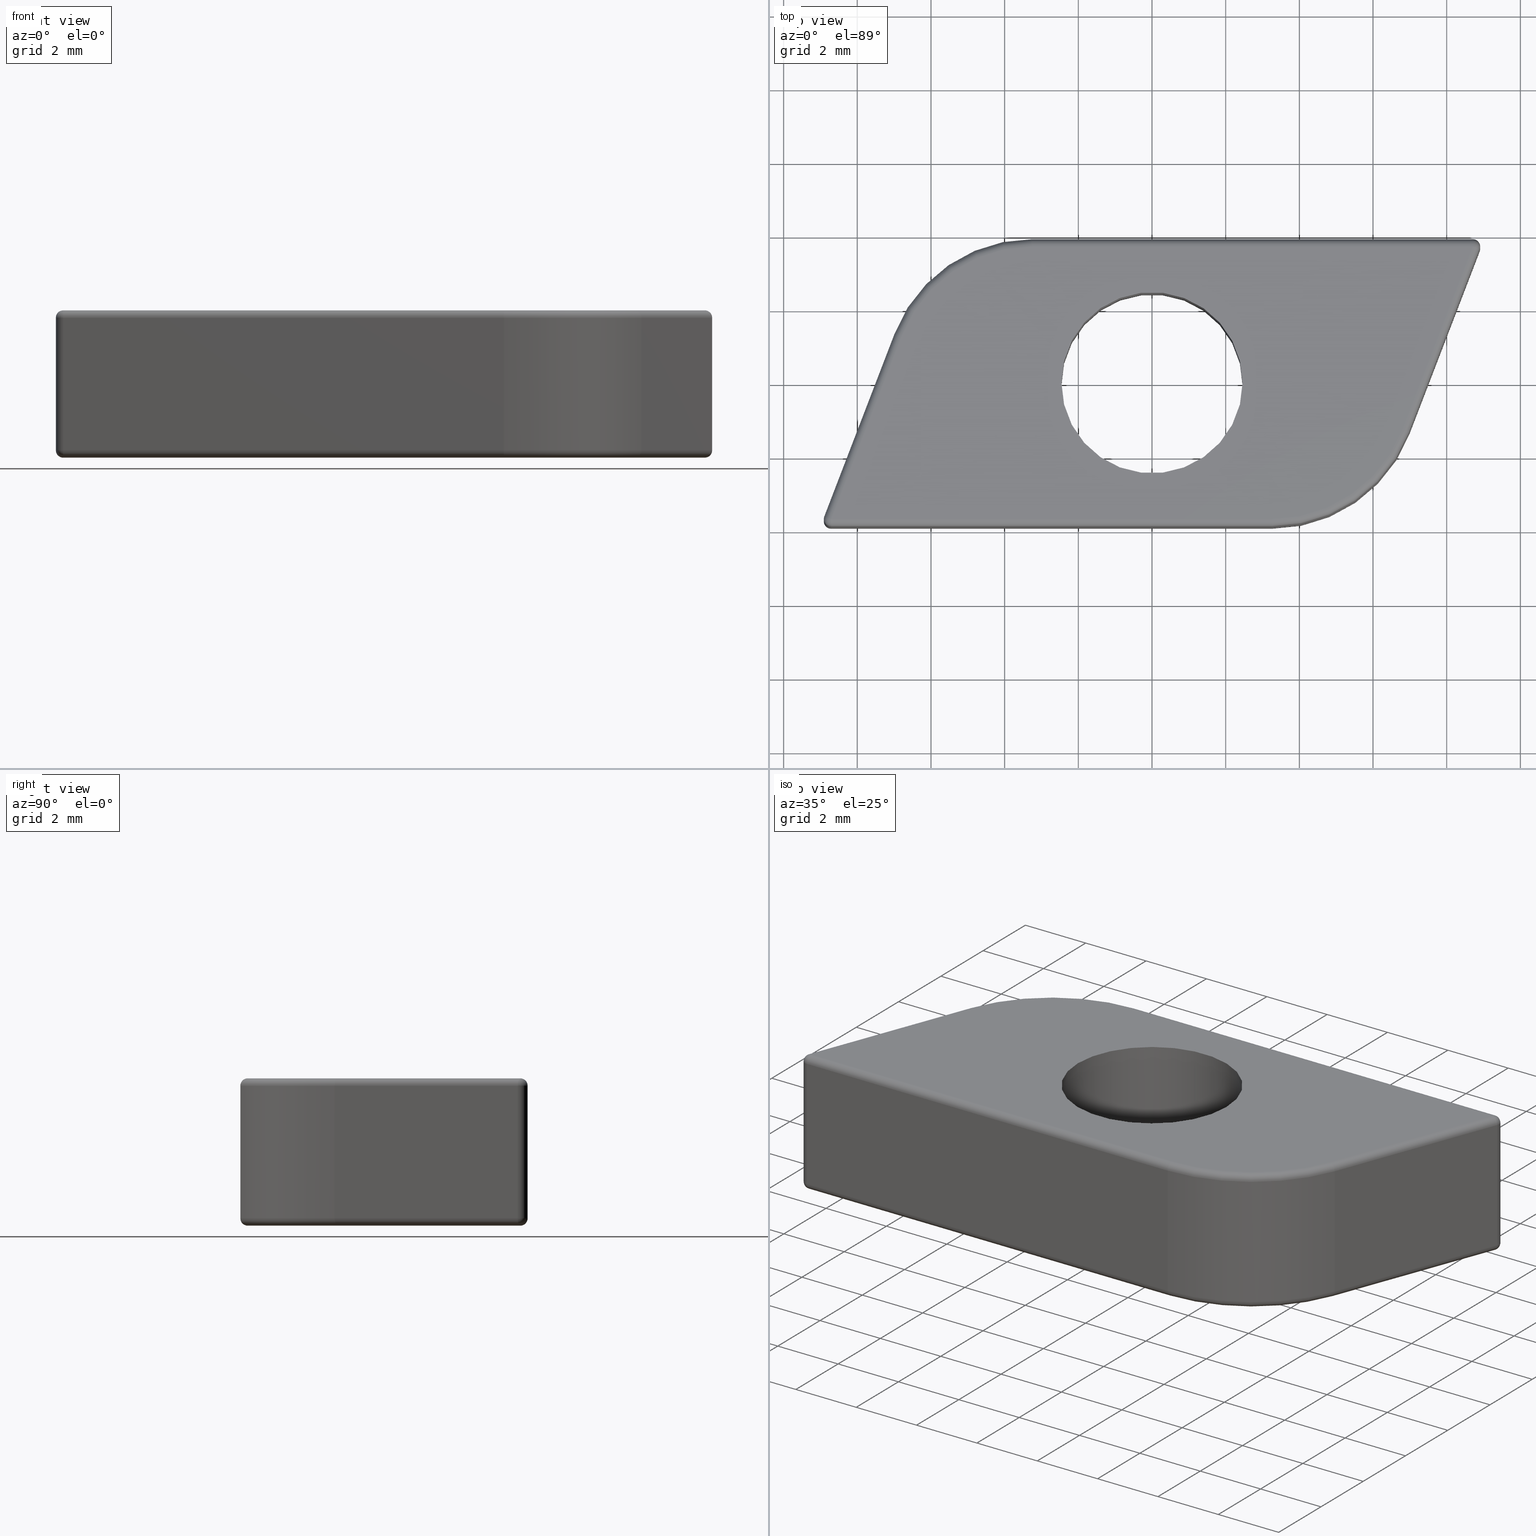
[diagram: canonical four-view strip — front | top / right | iso, engineering-drawing reading convention]
A machine part, canonical four-view strip (front | top / right | iso — engineering-drawing reading convention). The complete STEP part file that produces these views, byte-faithful:
ISO-10303-21;
HEADER;
/* Generated by software containing ST-Developer
 * from STEP Tools, Inc. (www.steptools.com) 
 */

FILE_DESCRIPTION(
/* description */ ('CURSORE SAGOMATO A MARTELLO M6'),
/* implementation_level */ '2;1');

FILE_NAME(
/* name */ 'C:\\Users\\Tecnico5\\Downloads\\CDDCU0000025.stp',
/* time_stamp */ '2025-02-13T09:21:02+01:00',
/* author */ ('tecnico5'),
/* organization */ (''),
/* preprocessor_version */ 'ST-DEVELOPER v20',
/* originating_system */ 'Autodesk Inventor 2022',
/* authorisation */ '');

FILE_SCHEMA (('AUTOMOTIVE_DESIGN { 1 0 10303 214 3 1 1 }'));
ENDSEC;

DATA;
#10=MECHANICAL_DESIGN_GEOMETRIC_PRESENTATION_REPRESENTATION('',(#13),#739);
#11=SHAPE_REPRESENTATION_RELATIONSHIP('SRR','None',#746,#12);
#12=ADVANCED_BREP_SHAPE_REPRESENTATION('',(#14),#738);
#13=STYLED_ITEM('',(#755),#14);
#14=MANIFOLD_SOLID_BREP('Solido1',#402);
#15=FACE_BOUND('',#139,.T.);
#16=FACE_BOUND('',#141,.T.);
#17=PLANE('',#473);
#18=PLANE('',#474);
#19=PLANE('',#476);
#20=PLANE('',#478);
#21=PLANE('',#479);
#22=PLANE('',#480);
#23=LINE('',#671,#48);
#24=LINE('',#672,#49);
#25=LINE('',#692,#50);
#26=LINE('',#693,#51);
#27=LINE('',#695,#52);
#28=LINE('',#696,#53);
#29=LINE('',#698,#54);
#30=LINE('',#699,#55);
#31=LINE('',#701,#56);
#32=LINE('',#702,#57);
#33=LINE('',#704,#58);
#34=LINE('',#705,#59);
#35=LINE('',#707,#60);
#36=LINE('',#708,#61);
#37=LINE('',#710,#62);
#38=LINE('',#711,#63);
#39=LINE('',#713,#64);
#40=LINE('',#714,#65);
#41=LINE('',#716,#66);
#42=LINE('',#717,#67);
#43=LINE('',#719,#68);
#44=LINE('',#720,#69);
#45=LINE('',#722,#70);
#46=LINE('',#723,#71);
#47=LINE('',#735,#72);
#48=VECTOR('',#538,10.);
#49=VECTOR('',#539,10.);
#50=VECTOR('',#562,10.);
#51=VECTOR('',#563,10.);
#52=VECTOR('',#566,10.);
#53=VECTOR('',#567,10.);
#54=VECTOR('',#570,10.);
#55=VECTOR('',#571,10.);
#56=VECTOR('',#574,10.);
#57=VECTOR('',#575,10.);
#58=VECTOR('',#578,10.);
#59=VECTOR('',#579,10.);
#60=VECTOR('',#582,10.);
#61=VECTOR('',#583,10.);
#62=VECTOR('',#586,10.);
#63=VECTOR('',#587,10.);
#64=VECTOR('',#590,10.);
#65=VECTOR('',#591,10.);
#66=VECTOR('',#594,10.);
#67=VECTOR('',#595,10.);
#68=VECTOR('',#598,10.);
#69=VECTOR('',#599,10.);
#70=VECTOR('',#602,10.);
#71=VECTOR('',#603,10.);
#72=VECTOR('',#622,2.4585);
#73=CYLINDRICAL_SURFACE('',#451,0.2);
#74=CYLINDRICAL_SURFACE('',#462,0.2);
#75=CYLINDRICAL_SURFACE('',#463,0.2);
#76=CYLINDRICAL_SURFACE('',#464,4.);
#77=CYLINDRICAL_SURFACE('',#465,0.2);
#78=CYLINDRICAL_SURFACE('',#466,0.2);
#79=CYLINDRICAL_SURFACE('',#467,0.2);
#80=CYLINDRICAL_SURFACE('',#468,0.2);
#81=CYLINDRICAL_SURFACE('',#469,0.2);
#82=CYLINDRICAL_SURFACE('',#470,0.2);
#83=CYLINDRICAL_SURFACE('',#471,0.2);
#84=CYLINDRICAL_SURFACE('',#472,4.);
#85=CYLINDRICAL_SURFACE('',#481,2.4585);
#86=SPHERICAL_SURFACE('',#435,0.2);
#87=SPHERICAL_SURFACE('',#439,0.2);
#88=SPHERICAL_SURFACE('',#443,0.2);
#89=SPHERICAL_SURFACE('',#447,0.2);
#90=FACE_OUTER_BOUND('',#117,.T.);
#91=FACE_OUTER_BOUND('',#118,.T.);
#92=FACE_OUTER_BOUND('',#119,.T.);
#93=FACE_OUTER_BOUND('',#120,.T.);
#94=FACE_OUTER_BOUND('',#121,.T.);
#95=FACE_OUTER_BOUND('',#122,.T.);
#96=FACE_OUTER_BOUND('',#123,.T.);
#97=FACE_OUTER_BOUND('',#124,.T.);
#98=FACE_OUTER_BOUND('',#125,.T.);
#99=FACE_OUTER_BOUND('',#126,.T.);
#100=FACE_OUTER_BOUND('',#127,.T.);
#101=FACE_OUTER_BOUND('',#128,.T.);
#102=FACE_OUTER_BOUND('',#129,.T.);
#103=FACE_OUTER_BOUND('',#130,.T.);
#104=FACE_OUTER_BOUND('',#131,.T.);
#105=FACE_OUTER_BOUND('',#132,.T.);
#106=FACE_OUTER_BOUND('',#133,.T.);
#107=FACE_OUTER_BOUND('',#134,.T.);
#108=FACE_OUTER_BOUND('',#135,.T.);
#109=FACE_OUTER_BOUND('',#136,.T.);
#110=FACE_OUTER_BOUND('',#137,.T.);
#111=FACE_OUTER_BOUND('',#138,.T.);
#112=FACE_OUTER_BOUND('',#140,.T.);
#113=FACE_OUTER_BOUND('',#142,.T.);
#114=FACE_OUTER_BOUND('',#143,.T.);
#115=FACE_OUTER_BOUND('',#144,.T.);
#116=FACE_OUTER_BOUND('',#145,.T.);
#117=EDGE_LOOP('',(#261,#262,#263,#264));
#118=EDGE_LOOP('',(#265,#266,#267,#268));
#119=EDGE_LOOP('',(#269,#270,#271));
#120=EDGE_LOOP('',(#272,#273,#274));
#121=EDGE_LOOP('',(#275,#276,#277));
#122=EDGE_LOOP('',(#278,#279,#280));
#123=EDGE_LOOP('',(#281,#282,#283,#284));
#124=EDGE_LOOP('',(#285,#286,#287,#288));
#125=EDGE_LOOP('',(#289,#290,#291,#292));
#126=EDGE_LOOP('',(#293,#294,#295,#296));
#127=EDGE_LOOP('',(#297,#298,#299,#300));
#128=EDGE_LOOP('',(#301,#302,#303,#304));
#129=EDGE_LOOP('',(#305,#306,#307,#308));
#130=EDGE_LOOP('',(#309,#310,#311,#312));
#131=EDGE_LOOP('',(#313,#314,#315,#316));
#132=EDGE_LOOP('',(#317,#318,#319,#320));
#133=EDGE_LOOP('',(#321,#322,#323,#324));
#134=EDGE_LOOP('',(#325,#326,#327,#328));
#135=EDGE_LOOP('',(#329,#330,#331,#332));
#136=EDGE_LOOP('',(#333,#334,#335,#336));
#137=EDGE_LOOP('',(#337,#338,#339,#340));
#138=EDGE_LOOP('',(#341,#342,#343,#344,#345,#346));
#139=EDGE_LOOP('',(#347));
#140=EDGE_LOOP('',(#348,#349,#350,#351,#352,#353));
#141=EDGE_LOOP('',(#354));
#142=EDGE_LOOP('',(#355,#356,#357,#358));
#143=EDGE_LOOP('',(#359,#360,#361,#362));
#144=EDGE_LOOP('',(#363,#364,#365,#366));
#145=EDGE_LOOP('',(#367,#368,#369,#370));
#146=CIRCLE('',#426,0.2);
#147=CIRCLE('',#427,4.);
#148=CIRCLE('',#428,0.2);
#149=CIRCLE('',#429,3.8);
#150=CIRCLE('',#431,3.8);
#151=CIRCLE('',#432,0.2);
#152=CIRCLE('',#433,4.);
#153=CIRCLE('',#434,0.2);
#154=CIRCLE('',#436,0.2);
#155=CIRCLE('',#437,0.2);
#156=CIRCLE('',#438,0.2);
#157=CIRCLE('',#440,0.2);
#158=CIRCLE('',#441,0.2);
#159=CIRCLE('',#442,0.2);
#160=CIRCLE('',#444,0.2);
#161=CIRCLE('',#445,0.2);
#162=CIRCLE('',#446,0.2);
#163=CIRCLE('',#448,0.2);
#164=CIRCLE('',#449,0.2);
#165=CIRCLE('',#450,0.2);
#166=CIRCLE('',#453,0.2);
#167=CIRCLE('',#454,4.);
#168=CIRCLE('',#455,0.2);
#169=CIRCLE('',#456,3.8);
#170=CIRCLE('',#458,4.);
#171=CIRCLE('',#459,0.2);
#172=CIRCLE('',#460,3.8);
#173=CIRCLE('',#461,0.199999999999999);
#174=CIRCLE('',#475,2.4585);
#175=CIRCLE('',#477,2.4585);
#176=VERTEX_POINT('',#625);
#177=VERTEX_POINT('',#626);
#178=VERTEX_POINT('',#628);
#179=VERTEX_POINT('',#630);
#180=VERTEX_POINT('',#634);
#181=VERTEX_POINT('',#635);
#182=VERTEX_POINT('',#637);
#183=VERTEX_POINT('',#639);
#184=VERTEX_POINT('',#643);
#185=VERTEX_POINT('',#644);
#186=VERTEX_POINT('',#646);
#187=VERTEX_POINT('',#650);
#188=VERTEX_POINT('',#651);
#189=VERTEX_POINT('',#653);
#190=VERTEX_POINT('',#657);
#191=VERTEX_POINT('',#658);
#192=VERTEX_POINT('',#660);
#193=VERTEX_POINT('',#664);
#194=VERTEX_POINT('',#665);
#195=VERTEX_POINT('',#667);
#196=VERTEX_POINT('',#674);
#197=VERTEX_POINT('',#675);
#198=VERTEX_POINT('',#677);
#199=VERTEX_POINT('',#679);
#200=VERTEX_POINT('',#683);
#201=VERTEX_POINT('',#684);
#202=VERTEX_POINT('',#686);
#203=VERTEX_POINT('',#688);
#204=VERTEX_POINT('',#726);
#205=VERTEX_POINT('',#729);
#206=EDGE_CURVE('',#176,#177,#146,.T.);
#207=EDGE_CURVE('',#178,#176,#147,.F.);
#208=EDGE_CURVE('',#179,#178,#148,.T.);
#209=EDGE_CURVE('',#179,#177,#149,.T.);
#210=EDGE_CURVE('',#180,#181,#150,.T.);
#211=EDGE_CURVE('',#182,#181,#151,.T.);
#212=EDGE_CURVE('',#183,#182,#152,.F.);
#213=EDGE_CURVE('',#180,#183,#153,.T.);
#214=EDGE_CURVE('',#184,#185,#154,.F.);
#215=EDGE_CURVE('',#186,#184,#155,.F.);
#216=EDGE_CURVE('',#185,#186,#156,.F.);
#217=EDGE_CURVE('',#187,#188,#157,.F.);
#218=EDGE_CURVE('',#189,#187,#158,.F.);
#219=EDGE_CURVE('',#188,#189,#159,.F.);
#220=EDGE_CURVE('',#190,#191,#160,.F.);
#221=EDGE_CURVE('',#192,#190,#161,.F.);
#222=EDGE_CURVE('',#191,#192,#162,.F.);
#223=EDGE_CURVE('',#193,#194,#163,.F.);
#224=EDGE_CURVE('',#195,#193,#164,.F.);
#225=EDGE_CURVE('',#194,#195,#165,.F.);
#226=EDGE_CURVE('',#193,#182,#23,.T.);
#227=EDGE_CURVE('',#181,#195,#24,.T.);
#228=EDGE_CURVE('',#196,#197,#166,.T.);
#229=EDGE_CURVE('',#198,#196,#167,.F.);
#230=EDGE_CURVE('',#199,#198,#168,.T.);
#231=EDGE_CURVE('',#199,#197,#169,.T.);
#232=EDGE_CURVE('',#200,#201,#170,.F.);
#233=EDGE_CURVE('',#202,#200,#171,.T.);
#234=EDGE_CURVE('',#202,#203,#172,.T.);
#235=EDGE_CURVE('',#201,#203,#173,.T.);
#236=EDGE_CURVE('',#200,#194,#25,.T.);
#237=EDGE_CURVE('',#195,#202,#26,.T.);
#238=EDGE_CURVE('',#190,#201,#27,.T.);
#239=EDGE_CURVE('',#203,#192,#28,.T.);
#240=EDGE_CURVE('',#196,#200,#29,.T.);
#241=EDGE_CURVE('',#201,#198,#30,.T.);
#242=EDGE_CURVE('',#188,#199,#31,.T.);
#243=EDGE_CURVE('',#198,#187,#32,.T.);
#244=EDGE_CURVE('',#197,#185,#33,.T.);
#245=EDGE_CURVE('',#186,#196,#34,.T.);
#246=EDGE_CURVE('',#184,#193,#35,.T.);
#247=EDGE_CURVE('',#194,#186,#36,.T.);
#248=EDGE_CURVE('',#183,#191,#37,.T.);
#249=EDGE_CURVE('',#192,#180,#38,.T.);
#250=EDGE_CURVE('',#187,#190,#39,.T.);
#251=EDGE_CURVE('',#191,#189,#40,.T.);
#252=EDGE_CURVE('',#177,#188,#41,.T.);
#253=EDGE_CURVE('',#189,#176,#42,.T.);
#254=EDGE_CURVE('',#185,#179,#43,.T.);
#255=EDGE_CURVE('',#178,#184,#44,.T.);
#256=EDGE_CURVE('',#176,#183,#45,.T.);
#257=EDGE_CURVE('',#182,#178,#46,.T.);
#258=EDGE_CURVE('',#204,#204,#174,.T.);
#259=EDGE_CURVE('',#205,#205,#175,.T.);
#260=EDGE_CURVE('',#205,#204,#47,.T.);
#261=ORIENTED_EDGE('',*,*,#206,.F.);
#262=ORIENTED_EDGE('',*,*,#207,.F.);
#263=ORIENTED_EDGE('',*,*,#208,.F.);
#264=ORIENTED_EDGE('',*,*,#209,.T.);
#265=ORIENTED_EDGE('',*,*,#210,.T.);
#266=ORIENTED_EDGE('',*,*,#211,.F.);
#267=ORIENTED_EDGE('',*,*,#212,.F.);
#268=ORIENTED_EDGE('',*,*,#213,.F.);
#269=ORIENTED_EDGE('',*,*,#214,.F.);
#270=ORIENTED_EDGE('',*,*,#215,.F.);
#271=ORIENTED_EDGE('',*,*,#216,.F.);
#272=ORIENTED_EDGE('',*,*,#217,.F.);
#273=ORIENTED_EDGE('',*,*,#218,.F.);
#274=ORIENTED_EDGE('',*,*,#219,.F.);
#275=ORIENTED_EDGE('',*,*,#220,.F.);
#276=ORIENTED_EDGE('',*,*,#221,.F.);
#277=ORIENTED_EDGE('',*,*,#222,.F.);
#278=ORIENTED_EDGE('',*,*,#223,.F.);
#279=ORIENTED_EDGE('',*,*,#224,.F.);
#280=ORIENTED_EDGE('',*,*,#225,.F.);
#281=ORIENTED_EDGE('',*,*,#224,.T.);
#282=ORIENTED_EDGE('',*,*,#226,.T.);
#283=ORIENTED_EDGE('',*,*,#211,.T.);
#284=ORIENTED_EDGE('',*,*,#227,.T.);
#285=ORIENTED_EDGE('',*,*,#228,.F.);
#286=ORIENTED_EDGE('',*,*,#229,.F.);
#287=ORIENTED_EDGE('',*,*,#230,.F.);
#288=ORIENTED_EDGE('',*,*,#231,.T.);
#289=ORIENTED_EDGE('',*,*,#232,.F.);
#290=ORIENTED_EDGE('',*,*,#233,.F.);
#291=ORIENTED_EDGE('',*,*,#234,.T.);
#292=ORIENTED_EDGE('',*,*,#235,.F.);
#293=ORIENTED_EDGE('',*,*,#233,.T.);
#294=ORIENTED_EDGE('',*,*,#236,.T.);
#295=ORIENTED_EDGE('',*,*,#225,.T.);
#296=ORIENTED_EDGE('',*,*,#237,.T.);
#297=ORIENTED_EDGE('',*,*,#221,.T.);
#298=ORIENTED_EDGE('',*,*,#238,.T.);
#299=ORIENTED_EDGE('',*,*,#235,.T.);
#300=ORIENTED_EDGE('',*,*,#239,.T.);
#301=ORIENTED_EDGE('',*,*,#229,.T.);
#302=ORIENTED_EDGE('',*,*,#240,.T.);
#303=ORIENTED_EDGE('',*,*,#232,.T.);
#304=ORIENTED_EDGE('',*,*,#241,.T.);
#305=ORIENTED_EDGE('',*,*,#217,.T.);
#306=ORIENTED_EDGE('',*,*,#242,.T.);
#307=ORIENTED_EDGE('',*,*,#230,.T.);
#308=ORIENTED_EDGE('',*,*,#243,.T.);
#309=ORIENTED_EDGE('',*,*,#228,.T.);
#310=ORIENTED_EDGE('',*,*,#244,.T.);
#311=ORIENTED_EDGE('',*,*,#216,.T.);
#312=ORIENTED_EDGE('',*,*,#245,.T.);
#313=ORIENTED_EDGE('',*,*,#215,.T.);
#314=ORIENTED_EDGE('',*,*,#246,.T.);
#315=ORIENTED_EDGE('',*,*,#223,.T.);
#316=ORIENTED_EDGE('',*,*,#247,.T.);
#317=ORIENTED_EDGE('',*,*,#213,.T.);
#318=ORIENTED_EDGE('',*,*,#248,.T.);
#319=ORIENTED_EDGE('',*,*,#222,.T.);
#320=ORIENTED_EDGE('',*,*,#249,.T.);
#321=ORIENTED_EDGE('',*,*,#218,.T.);
#322=ORIENTED_EDGE('',*,*,#250,.T.);
#323=ORIENTED_EDGE('',*,*,#220,.T.);
#324=ORIENTED_EDGE('',*,*,#251,.T.);
#325=ORIENTED_EDGE('',*,*,#206,.T.);
#326=ORIENTED_EDGE('',*,*,#252,.T.);
#327=ORIENTED_EDGE('',*,*,#219,.T.);
#328=ORIENTED_EDGE('',*,*,#253,.T.);
#329=ORIENTED_EDGE('',*,*,#214,.T.);
#330=ORIENTED_EDGE('',*,*,#254,.T.);
#331=ORIENTED_EDGE('',*,*,#208,.T.);
#332=ORIENTED_EDGE('',*,*,#255,.T.);
#333=ORIENTED_EDGE('',*,*,#207,.T.);
#334=ORIENTED_EDGE('',*,*,#256,.T.);
#335=ORIENTED_EDGE('',*,*,#212,.T.);
#336=ORIENTED_EDGE('',*,*,#257,.T.);
#337=ORIENTED_EDGE('',*,*,#226,.F.);
#338=ORIENTED_EDGE('',*,*,#246,.F.);
#339=ORIENTED_EDGE('',*,*,#255,.F.);
#340=ORIENTED_EDGE('',*,*,#257,.F.);
#341=ORIENTED_EDGE('',*,*,#231,.F.);
#342=ORIENTED_EDGE('',*,*,#242,.F.);
#343=ORIENTED_EDGE('',*,*,#252,.F.);
#344=ORIENTED_EDGE('',*,*,#209,.F.);
#345=ORIENTED_EDGE('',*,*,#254,.F.);
#346=ORIENTED_EDGE('',*,*,#244,.F.);
#347=ORIENTED_EDGE('',*,*,#258,.T.);
#348=ORIENTED_EDGE('',*,*,#234,.F.);
#349=ORIENTED_EDGE('',*,*,#237,.F.);
#350=ORIENTED_EDGE('',*,*,#227,.F.);
#351=ORIENTED_EDGE('',*,*,#210,.F.);
#352=ORIENTED_EDGE('',*,*,#249,.F.);
#353=ORIENTED_EDGE('',*,*,#239,.F.);
#354=ORIENTED_EDGE('',*,*,#259,.T.);
#355=ORIENTED_EDGE('',*,*,#236,.F.);
#356=ORIENTED_EDGE('',*,*,#240,.F.);
#357=ORIENTED_EDGE('',*,*,#245,.F.);
#358=ORIENTED_EDGE('',*,*,#247,.F.);
#359=ORIENTED_EDGE('',*,*,#238,.F.);
#360=ORIENTED_EDGE('',*,*,#250,.F.);
#361=ORIENTED_EDGE('',*,*,#243,.F.);
#362=ORIENTED_EDGE('',*,*,#241,.F.);
#363=ORIENTED_EDGE('',*,*,#248,.F.);
#364=ORIENTED_EDGE('',*,*,#256,.F.);
#365=ORIENTED_EDGE('',*,*,#253,.F.);
#366=ORIENTED_EDGE('',*,*,#251,.F.);
#367=ORIENTED_EDGE('',*,*,#259,.F.);
#368=ORIENTED_EDGE('',*,*,#260,.T.);
#369=ORIENTED_EDGE('',*,*,#258,.F.);
#370=ORIENTED_EDGE('',*,*,#260,.F.);
#371=TOROIDAL_SURFACE('',#425,3.80000000000001,0.2);
#372=TOROIDAL_SURFACE('',#430,3.8,0.2);
#373=TOROIDAL_SURFACE('',#452,3.80000000000001,0.2);
#374=TOROIDAL_SURFACE('',#457,3.8,0.199999999999999);
#375=ADVANCED_FACE('',(#90),#371,.T.);
#376=ADVANCED_FACE('',(#91),#372,.T.);
#377=ADVANCED_FACE('',(#92),#86,.T.);
#378=ADVANCED_FACE('',(#93),#87,.T.);
#379=ADVANCED_FACE('',(#94),#88,.T.);
#380=ADVANCED_FACE('',(#95),#89,.T.);
#381=ADVANCED_FACE('',(#96),#73,.T.);
#382=ADVANCED_FACE('',(#97),#373,.T.);
#383=ADVANCED_FACE('',(#98),#374,.T.);
#384=ADVANCED_FACE('',(#99),#74,.T.);
#385=ADVANCED_FACE('',(#100),#75,.T.);
#386=ADVANCED_FACE('',(#101),#76,.T.);
#387=ADVANCED_FACE('',(#102),#77,.T.);
#388=ADVANCED_FACE('',(#103),#78,.T.);
#389=ADVANCED_FACE('',(#104),#79,.T.);
#390=ADVANCED_FACE('',(#105),#80,.T.);
#391=ADVANCED_FACE('',(#106),#81,.T.);
#392=ADVANCED_FACE('',(#107),#82,.T.);
#393=ADVANCED_FACE('',(#108),#83,.T.);
#394=ADVANCED_FACE('',(#109),#84,.T.);
#395=ADVANCED_FACE('',(#110),#17,.T.);
#396=ADVANCED_FACE('',(#111,#15),#18,.T.);
#397=ADVANCED_FACE('',(#112,#16),#19,.F.);
#398=ADVANCED_FACE('',(#113),#20,.T.);
#399=ADVANCED_FACE('',(#114),#21,.T.);
#400=ADVANCED_FACE('',(#115),#22,.T.);
#401=ADVANCED_FACE('',(#116),#85,.F.);
#402=CLOSED_SHELL('',(#375,#376,#377,#378,#379,#380,#381,#382,#383,#384,
#385,#386,#387,#388,#389,#390,#391,#392,#393,#394,#395,#396,#397,#398,#399,
#400,#401));
#403=DERIVED_UNIT_ELEMENT(#406,1.);
#404=DERIVED_UNIT_ELEMENT(#741,-3.);
#405=DIMENSIONAL_EXPONENTS(1.,0.,0.,0.,0.,0.,0.);
#406=(
CONVERSION_BASED_UNIT('gram',#408)
MASS_UNIT()
NAMED_UNIT(#405)
);
#407=(
MASS_UNIT()
NAMED_UNIT(*)
SI_UNIT(.KILO.,.GRAM.)
);
#408=MASS_MEASURE_WITH_UNIT(MASS_MEASURE(0.001),#407);
#409=DERIVED_UNIT((#403,#404));
#410=MEASURE_REPRESENTATION_ITEM('density measure',
POSITIVE_RATIO_MEASURE(7.85),#409);
#411=PROPERTY_DEFINITION_REPRESENTATION(#416,#413);
#412=PROPERTY_DEFINITION_REPRESENTATION(#417,#414);
#413=REPRESENTATION('material name',(#415),#738);
#414=REPRESENTATION('density',(#410),#738);
#415=DESCRIPTIVE_REPRESENTATION_ITEM('Acciaio S235JR','Acciaio S235JR');
#416=PROPERTY_DEFINITION('material property','material name',#748);
#417=PROPERTY_DEFINITION('material property','density of part',#748);
#418=DATE_TIME_ROLE('creation_date');
#419=APPLIED_DATE_AND_TIME_ASSIGNMENT(#420,#418,(#748));
#420=DATE_AND_TIME(#421,#422);
#421=CALENDAR_DATE(2019,4,7);
#422=LOCAL_TIME(0,0,0.,#423);
#423=COORDINATED_UNIVERSAL_TIME_OFFSET(0,0,.BEHIND.);
#424=AXIS2_PLACEMENT_3D('placement',#623,#482,#483);
#425=AXIS2_PLACEMENT_3D('',#624,#484,#485);
#426=AXIS2_PLACEMENT_3D('',#627,#486,#487);
#427=AXIS2_PLACEMENT_3D('',#629,#488,#489);
#428=AXIS2_PLACEMENT_3D('',#631,#490,#491);
#429=AXIS2_PLACEMENT_3D('',#632,#492,#493);
#430=AXIS2_PLACEMENT_3D('',#633,#494,#495);
#431=AXIS2_PLACEMENT_3D('',#636,#496,#497);
#432=AXIS2_PLACEMENT_3D('',#638,#498,#499);
#433=AXIS2_PLACEMENT_3D('',#640,#500,#501);
#434=AXIS2_PLACEMENT_3D('',#641,#502,#503);
#435=AXIS2_PLACEMENT_3D('',#642,#504,#505);
#436=AXIS2_PLACEMENT_3D('',#645,#506,#507);
#437=AXIS2_PLACEMENT_3D('',#647,#508,#509);
#438=AXIS2_PLACEMENT_3D('',#648,#510,#511);
#439=AXIS2_PLACEMENT_3D('',#649,#512,#513);
#440=AXIS2_PLACEMENT_3D('',#652,#514,#515);
#441=AXIS2_PLACEMENT_3D('',#654,#516,#517);
#442=AXIS2_PLACEMENT_3D('',#655,#518,#519);
#443=AXIS2_PLACEMENT_3D('',#656,#520,#521);
#444=AXIS2_PLACEMENT_3D('',#659,#522,#523);
#445=AXIS2_PLACEMENT_3D('',#661,#524,#525);
#446=AXIS2_PLACEMENT_3D('',#662,#526,#527);
#447=AXIS2_PLACEMENT_3D('',#663,#528,#529);
#448=AXIS2_PLACEMENT_3D('',#666,#530,#531);
#449=AXIS2_PLACEMENT_3D('',#668,#532,#533);
#450=AXIS2_PLACEMENT_3D('',#669,#534,#535);
#451=AXIS2_PLACEMENT_3D('',#670,#536,#537);
#452=AXIS2_PLACEMENT_3D('',#673,#540,#541);
#453=AXIS2_PLACEMENT_3D('',#676,#542,#543);
#454=AXIS2_PLACEMENT_3D('',#678,#544,#545);
#455=AXIS2_PLACEMENT_3D('',#680,#546,#547);
#456=AXIS2_PLACEMENT_3D('',#681,#548,#549);
#457=AXIS2_PLACEMENT_3D('',#682,#550,#551);
#458=AXIS2_PLACEMENT_3D('',#685,#552,#553);
#459=AXIS2_PLACEMENT_3D('',#687,#554,#555);
#460=AXIS2_PLACEMENT_3D('',#689,#556,#557);
#461=AXIS2_PLACEMENT_3D('',#690,#558,#559);
#462=AXIS2_PLACEMENT_3D('',#691,#560,#561);
#463=AXIS2_PLACEMENT_3D('',#694,#564,#565);
#464=AXIS2_PLACEMENT_3D('',#697,#568,#569);
#465=AXIS2_PLACEMENT_3D('',#700,#572,#573);
#466=AXIS2_PLACEMENT_3D('',#703,#576,#577);
#467=AXIS2_PLACEMENT_3D('',#706,#580,#581);
#468=AXIS2_PLACEMENT_3D('',#709,#584,#585);
#469=AXIS2_PLACEMENT_3D('',#712,#588,#589);
#470=AXIS2_PLACEMENT_3D('',#715,#592,#593);
#471=AXIS2_PLACEMENT_3D('',#718,#596,#597);
#472=AXIS2_PLACEMENT_3D('',#721,#600,#601);
#473=AXIS2_PLACEMENT_3D('',#724,#604,#605);
#474=AXIS2_PLACEMENT_3D('',#725,#606,#607);
#475=AXIS2_PLACEMENT_3D('',#727,#608,#609);
#476=AXIS2_PLACEMENT_3D('',#728,#610,#611);
#477=AXIS2_PLACEMENT_3D('',#730,#612,#613);
#478=AXIS2_PLACEMENT_3D('',#731,#614,#615);
#479=AXIS2_PLACEMENT_3D('',#732,#616,#617);
#480=AXIS2_PLACEMENT_3D('',#733,#618,#619);
#481=AXIS2_PLACEMENT_3D('',#734,#620,#621);
#482=DIRECTION('axis',(0.,0.,1.));
#483=DIRECTION('refdir',(1.,0.,0.));
#484=DIRECTION('center_axis',(0.,0.,1.));
#485=DIRECTION('ref_axis',(1.,0.,0.));
#486=DIRECTION('center_axis',(1.,0.,0.));
#487=DIRECTION('ref_axis',(0.,1.,0.));
#488=DIRECTION('center_axis',(0.,0.,1.));
#489=DIRECTION('ref_axis',(-0.933340797033894,0.35899158289873,0.));
#490=DIRECTION('center_axis',(-0.358991582898732,-0.933340797033893,0.));
#491=DIRECTION('ref_axis',(0.,0.,1.));
#492=DIRECTION('center_axis',(0.,0.,-1.));
#493=DIRECTION('ref_axis',(-0.566130911142145,0.824315347090763,0.));
#494=DIRECTION('center_axis',(0.,2.77555756156289E-15,1.));
#495=DIRECTION('ref_axis',(1.,0.,0.));
#496=DIRECTION('center_axis',(0.,0.,1.));
#497=DIRECTION('ref_axis',(-0.566130911142145,0.824315347090763,0.));
#498=DIRECTION('center_axis',(-0.35899158289873,-0.933340797033894,2.59054110672256E-15));
#499=DIRECTION('ref_axis',(-0.933340797033894,0.35899158289873,0.));
#500=DIRECTION('center_axis',(0.,0.,-1.));
#501=DIRECTION('ref_axis',(-1.38777878078145E-16,1.,0.));
#502=DIRECTION('center_axis',(1.,0.,0.));
#503=DIRECTION('ref_axis',(0.,0.,-1.));
#504=DIRECTION('center_axis',(0.289529722585717,-0.90550735830652,-0.310207936378464));
#505=DIRECTION('ref_axis',(-0.617846836957846,-0.424330559885503,0.661973460199455));
#506=DIRECTION('center_axis',(-0.35899158289873,-0.933340797033894,7.17388581834911E-15));
#507=DIRECTION('ref_axis',(-0.933340797033894,0.35899158289873,0.));
#508=DIRECTION('center_axis',(0.,0.,1.));
#509=DIRECTION('ref_axis',(0.,-1.,0.));
#510=DIRECTION('center_axis',(-1.,0.,0.));
#511=DIRECTION('ref_axis',(0.,0.,1.));
#512=DIRECTION('center_axis',(0.289529722585717,-0.905507358306521,0.310207936378462));
#513=DIRECTION('ref_axis',(0.617846836957848,0.424330559885502,0.661973460199455));
#514=DIRECTION('center_axis',(0.35899158289873,0.933340797033894,0.));
#515=DIRECTION('ref_axis',(0.933340797033894,-0.35899158289873,0.));
#516=DIRECTION('center_axis',(0.,0.,1.));
#517=DIRECTION('ref_axis',(0.,1.,0.));
#518=DIRECTION('center_axis',(1.,5.55111512312579E-15,0.));
#519=DIRECTION('ref_axis',(0.,0.,1.));
#520=DIRECTION('center_axis',(0.289529722585717,-0.905507358306518,-0.310207936378469));
#521=DIRECTION('ref_axis',(0.617846836957839,0.424330559885511,-0.661973460199457));
#522=DIRECTION('center_axis',(0.,0.,-1.));
#523=DIRECTION('ref_axis',(0.933340797033894,-0.35899158289873,0.));
#524=DIRECTION('center_axis',(0.358991582898725,0.933340797033896,0.));
#525=DIRECTION('ref_axis',(0.,0.,-1.));
#526=DIRECTION('center_axis',(1.,0.,5.55111512312578E-15));
#527=DIRECTION('ref_axis',(0.,1.,0.));
#528=DIRECTION('center_axis',(0.289529722585718,-0.905507358306518,0.310207936378469));
#529=DIRECTION('ref_axis',(-0.617846836957846,-0.424330559885512,-0.66197346019945));
#530=DIRECTION('center_axis',(0.,0.,-1.));
#531=DIRECTION('ref_axis',(-0.933340797033894,0.35899158289873,0.));
#532=DIRECTION('center_axis',(-0.358991582898723,-0.933340797033897,0.));
#533=DIRECTION('ref_axis',(0.,0.,-1.));
#534=DIRECTION('center_axis',(-1.,0.,0.));
#535=DIRECTION('ref_axis',(0.,-1.,0.));
#536=DIRECTION('center_axis',(-0.35899158289873,-0.933340797033894,0.));
#537=DIRECTION('ref_axis',(-0.659971606740721,0.253845382656587,-0.707106781186549));
#538=DIRECTION('',(0.35899158289873,0.933340797033894,0.));
#539=DIRECTION('',(-0.35899158289873,-0.933340797033894,0.));
#540=DIRECTION('center_axis',(0.,0.,1.));
#541=DIRECTION('ref_axis',(1.,0.,0.));
#542=DIRECTION('center_axis',(-1.,0.,0.));
#543=DIRECTION('ref_axis',(0.,-1.,0.));
#544=DIRECTION('center_axis',(0.,0.,1.));
#545=DIRECTION('ref_axis',(0.933340797033894,-0.358991582898729,0.));
#546=DIRECTION('center_axis',(0.358991582898733,0.933340797033893,0.));
#547=DIRECTION('ref_axis',(0.,0.,1.));
#548=DIRECTION('center_axis',(0.,0.,-1.));
#549=DIRECTION('ref_axis',(0.566130911142145,-0.824315347090762,0.));
#550=DIRECTION('center_axis',(0.,1.38777878078145E-15,-1.));
#551=DIRECTION('ref_axis',(-1.,0.,0.));
#552=DIRECTION('center_axis',(0.,0.,-1.));
#553=DIRECTION('ref_axis',(2.77555756156289E-16,-1.,0.));
#554=DIRECTION('center_axis',(-1.,0.,0.));
#555=DIRECTION('ref_axis',(0.,0.,-1.));
#556=DIRECTION('center_axis',(0.,0.,1.));
#557=DIRECTION('ref_axis',(0.566130911142145,-0.824315347090763,0.));
#558=DIRECTION('center_axis',(0.358991582898732,0.933340797033893,1.29527055336128E-15));
#559=DIRECTION('ref_axis',(0.933340797033893,-0.358991582898731,0.));
#560=DIRECTION('center_axis',(1.,2.59054110672256E-16,0.));
#561=DIRECTION('ref_axis',(0.,-0.707106781186548,-0.707106781186547));
#562=DIRECTION('',(-1.,-2.59054110672256E-16,0.));
#563=DIRECTION('',(1.,2.59054110672256E-16,0.));
#564=DIRECTION('center_axis',(0.358991582898729,0.933340797033894,0.));
#565=DIRECTION('ref_axis',(0.659971606740726,-0.253845382656582,-0.707106781186546));
#566=DIRECTION('',(-0.358991582898729,-0.933340797033894,0.));
#567=DIRECTION('',(0.358991582898729,0.933340797033894,0.));
#568=DIRECTION('center_axis',(0.,0.,1.));
#569=DIRECTION('ref_axis',(0.566130911142145,-0.824315347090763,0.));
#570=DIRECTION('',(0.,0.,-1.));
#571=DIRECTION('',(0.,0.,1.));
#572=DIRECTION('center_axis',(0.358991582898729,0.933340797033894,0.));
#573=DIRECTION('ref_axis',(0.659971606740726,-0.253845382656582,0.707106781186546));
#574=DIRECTION('',(-0.358991582898729,-0.933340797033894,0.));
#575=DIRECTION('',(0.358991582898729,0.933340797033894,0.));
#576=DIRECTION('center_axis',(1.,2.59054110672256E-16,0.));
#577=DIRECTION('ref_axis',(0.,-0.707106781186548,0.707106781186548));
#578=DIRECTION('',(-1.,-2.59054110672256E-16,0.));
#579=DIRECTION('',(1.,2.59054110672256E-16,0.));
#580=DIRECTION('center_axis',(0.,0.,1.));
#581=DIRECTION('ref_axis',(-0.824315347090762,-0.566130911142146,0.));
#582=DIRECTION('',(0.,0.,-1.));
#583=DIRECTION('',(0.,0.,1.));
#584=DIRECTION('center_axis',(-1.,-7.40154601920732E-17,0.));
#585=DIRECTION('ref_axis',(0.,0.707106781186548,-0.707106781186547));
#586=DIRECTION('',(1.,7.40154601920732E-17,0.));
#587=DIRECTION('',(-1.,-7.40154601920732E-17,0.));
#588=DIRECTION('center_axis',(0.,0.,1.));
#589=DIRECTION('ref_axis',(0.824315347090765,0.566130911142142,0.));
#590=DIRECTION('',(0.,0.,-1.));
#591=DIRECTION('',(0.,0.,1.));
#592=DIRECTION('center_axis',(-1.,-7.40154601920732E-17,0.));
#593=DIRECTION('ref_axis',(0.,0.707106781186548,0.707106781186548));
#594=DIRECTION('',(1.,7.40154601920732E-17,0.));
#595=DIRECTION('',(-1.,-7.40154601920732E-17,0.));
#596=DIRECTION('center_axis',(-0.35899158289873,-0.933340797033894,0.));
#597=DIRECTION('ref_axis',(-0.659971606740721,0.253845382656587,0.707106781186549));
#598=DIRECTION('',(0.35899158289873,0.933340797033894,0.));
#599=DIRECTION('',(-0.35899158289873,-0.933340797033894,0.));
#600=DIRECTION('center_axis',(0.,0.,1.));
#601=DIRECTION('ref_axis',(-0.566130911142145,0.824315347090763,0.));
#602=DIRECTION('',(0.,0.,-1.));
#603=DIRECTION('',(0.,0.,1.));
#604=DIRECTION('center_axis',(-0.933340797033894,0.35899158289873,0.));
#605=DIRECTION('ref_axis',(-0.35899158289873,-0.933340797033894,0.));
#606=DIRECTION('center_axis',(0.,0.,1.));
#607=DIRECTION('ref_axis',(1.,0.,0.));
#608=DIRECTION('center_axis',(0.,0.,-1.));
#609=DIRECTION('ref_axis',(-1.,0.,0.));
#610=DIRECTION('center_axis',(0.,0.,1.));
#611=DIRECTION('ref_axis',(1.,0.,0.));
#612=DIRECTION('center_axis',(0.,0.,1.));
#613=DIRECTION('ref_axis',(-1.,0.,0.));
#614=DIRECTION('center_axis',(2.59054110672256E-16,-1.,0.));
#615=DIRECTION('ref_axis',(1.,2.59054110672256E-16,0.));
#616=DIRECTION('center_axis',(0.933340797033894,-0.358991582898729,0.));
#617=DIRECTION('ref_axis',(0.358991582898729,0.933340797033894,0.));
#618=DIRECTION('center_axis',(-7.40154601920732E-17,1.,0.));
#619=DIRECTION('ref_axis',(-1.,-7.40154601920732E-17,0.));
#620=DIRECTION('center_axis',(0.,0.,-1.));
#621=DIRECTION('ref_axis',(-1.,0.,0.));
#622=DIRECTION('',(0.,0.,1.));
#623=CARTESIAN_POINT('',(0.,0.,0.));
#624=CARTESIAN_POINT('Origin',(-3.25272308672009,-0.100000000000012,3.8));
#625=CARTESIAN_POINT('',(-3.25272308672009,3.9,3.8));
#626=CARTESIAN_POINT('',(-3.25272308672009,3.7,4.));
#627=CARTESIAN_POINT('Origin',(-3.25272308672009,3.7,3.8));
#628=CARTESIAN_POINT('',(-6.98608627485567,1.33596633159492,3.8));
#629=CARTESIAN_POINT('Origin',(-3.25272308672009,-0.100000000000001,3.8));
#630=CARTESIAN_POINT('',(-6.79941811544889,1.26416801501517,4.));
#631=CARTESIAN_POINT('Origin',(-6.79941811544889,1.26416801501517,3.8));
#632=CARTESIAN_POINT('Origin',(-3.25272308672009,-0.100000000000002,4.));
#633=CARTESIAN_POINT('Origin',(-3.25272308672009,-0.100000000000001,0.200000000000011));
#634=CARTESIAN_POINT('',(-3.25272308672009,3.7,0.));
#635=CARTESIAN_POINT('',(-6.79941811544889,1.26416801501517,0.));
#636=CARTESIAN_POINT('Origin',(-3.25272308672009,-0.100000000000002,0.));
#637=CARTESIAN_POINT('',(-6.98608627485567,1.33596633159492,0.2));
#638=CARTESIAN_POINT('Origin',(-6.79941811544889,1.26416801501517,0.2));
#639=CARTESIAN_POINT('',(-3.25272308672009,3.9,0.2));
#640=CARTESIAN_POINT('Origin',(-3.25272308672009,-0.100000000000001,0.2));
#641=CARTESIAN_POINT('Origin',(-3.25272308672009,3.7,0.2));
#642=CARTESIAN_POINT('Origin',(-8.70878984670604,-3.7,3.8));
#643=CARTESIAN_POINT('',(-8.89545800611282,-3.62820168342026,3.8));
#644=CARTESIAN_POINT('',(-8.70878984670604,-3.7,4.));
#645=CARTESIAN_POINT('Origin',(-8.70878984670605,-3.7,3.8));
#646=CARTESIAN_POINT('',(-8.70878984670604,-3.9,3.8));
#647=CARTESIAN_POINT('Origin',(-8.70878984670604,-3.7,3.8));
#648=CARTESIAN_POINT('Origin',(-8.70878984670604,-3.7,3.8));
#649=CARTESIAN_POINT('Origin',(8.70878984670604,3.7,3.8));
#650=CARTESIAN_POINT('',(8.89545800611282,3.62820168342025,3.8));
#651=CARTESIAN_POINT('',(8.70878984670604,3.7,4.));
#652=CARTESIAN_POINT('Origin',(8.70878984670604,3.7,3.8));
#653=CARTESIAN_POINT('',(8.70878984670604,3.9,3.8));
#654=CARTESIAN_POINT('Origin',(8.70878984670604,3.7,3.8));
#655=CARTESIAN_POINT('Origin',(8.70878984670604,3.7,3.8));
#656=CARTESIAN_POINT('Origin',(8.70878984670604,3.7,0.2));
#657=CARTESIAN_POINT('',(8.89545800611282,3.62820168342026,0.2));
#658=CARTESIAN_POINT('',(8.70878984670604,3.9,0.2));
#659=CARTESIAN_POINT('Origin',(8.70878984670604,3.7,0.2));
#660=CARTESIAN_POINT('',(8.70878984670604,3.7,0.));
#661=CARTESIAN_POINT('Origin',(8.70878984670604,3.7,0.2));
#662=CARTESIAN_POINT('Origin',(8.70878984670604,3.7,0.2));
#663=CARTESIAN_POINT('Origin',(-8.70878984670604,-3.7,0.2));
#664=CARTESIAN_POINT('',(-8.89545800611282,-3.62820168342026,0.2));
#665=CARTESIAN_POINT('',(-8.70878984670604,-3.9,0.2));
#666=CARTESIAN_POINT('Origin',(-8.70878984670604,-3.7,0.2));
#667=CARTESIAN_POINT('',(-8.70878984670604,-3.7,0.));
#668=CARTESIAN_POINT('Origin',(-8.70878984670604,-3.7,0.2));
#669=CARTESIAN_POINT('Origin',(-8.70878984670604,-3.7,0.2));
#670=CARTESIAN_POINT('Origin',(-6.07996465452625,3.13467222356581,0.2));
#671=CARTESIAN_POINT('',(-6.26663281393303,3.20647054014555,0.2));
#672=CARTESIAN_POINT('',(-6.07996465452625,3.13467222356581,0.));
#673=CARTESIAN_POINT('Origin',(3.25272308672009,0.100000000000017,3.8));
#674=CARTESIAN_POINT('',(3.25272308672009,-3.9,3.8));
#675=CARTESIAN_POINT('',(3.25272308672009,-3.7,4.));
#676=CARTESIAN_POINT('Origin',(3.25272308672009,-3.7,3.8));
#677=CARTESIAN_POINT('',(6.98608627485566,-1.33596633159492,3.8));
#678=CARTESIAN_POINT('Origin',(3.25272308672009,0.100000000000002,3.8));
#679=CARTESIAN_POINT('',(6.79941811544889,-1.26416801501517,4.));
#680=CARTESIAN_POINT('Origin',(6.79941811544889,-1.26416801501517,3.8));
#681=CARTESIAN_POINT('Origin',(3.25272308672009,0.100000000000002,4.));
#682=CARTESIAN_POINT('Origin',(3.25272308672009,0.100000000000011,0.200000000000002));
#683=CARTESIAN_POINT('',(3.25272308672009,-3.9,0.2));
#684=CARTESIAN_POINT('',(6.98608627485566,-1.33596633159492,0.2));
#685=CARTESIAN_POINT('Origin',(3.25272308672009,0.100000000000002,0.2));
#686=CARTESIAN_POINT('',(3.25272308672009,-3.7,0.));
#687=CARTESIAN_POINT('Origin',(3.25272308672009,-3.7,0.2));
#688=CARTESIAN_POINT('',(6.79941811544889,-1.26416801501517,0.));
#689=CARTESIAN_POINT('Origin',(3.25272308672009,0.100000000000002,0.));
#690=CARTESIAN_POINT('Origin',(6.79941811544889,-1.26416801501517,0.2));
#691=CARTESIAN_POINT('Origin',(-4.5,-3.7,0.2));
#692=CARTESIAN_POINT('',(-4.5,-3.9,0.2));
#693=CARTESIAN_POINT('',(-4.5,-3.7,0.));
#694=CARTESIAN_POINT('Origin',(6.07996465452625,-3.13467222356581,0.2));
#695=CARTESIAN_POINT('',(6.26663281393303,-3.20647054014555,0.2));
#696=CARTESIAN_POINT('',(6.07996465452625,-3.13467222356581,0.));
#697=CARTESIAN_POINT('Origin',(3.25272308672009,0.100000000000002,0.));
#698=CARTESIAN_POINT('',(3.25272308672009,-3.9,0.));
#699=CARTESIAN_POINT('',(6.98608627485566,-1.33596633159492,0.));
#700=CARTESIAN_POINT('Origin',(6.07996465452625,-3.13467222356581,3.8));
#701=CARTESIAN_POINT('',(6.07996465452625,-3.13467222356581,4.));
#702=CARTESIAN_POINT('',(6.26663281393303,-3.20647054014555,3.8));
#703=CARTESIAN_POINT('Origin',(-4.5,-3.7,3.8));
#704=CARTESIAN_POINT('',(-4.5,-3.7,4.));
#705=CARTESIAN_POINT('',(-4.5,-3.9,3.8));
#706=CARTESIAN_POINT('Origin',(-8.70878984670604,-3.7,0.));
#707=CARTESIAN_POINT('',(-8.89545800611282,-3.62820168342026,0.));
#708=CARTESIAN_POINT('',(-8.70878984670604,-3.9,0.));
#709=CARTESIAN_POINT('Origin',(4.5,3.7,0.2));
#710=CARTESIAN_POINT('',(4.5,3.9,0.2));
#711=CARTESIAN_POINT('',(4.5,3.7,0.));
#712=CARTESIAN_POINT('Origin',(8.70878984670604,3.7,0.));
#713=CARTESIAN_POINT('',(8.89545800611282,3.62820168342025,0.));
#714=CARTESIAN_POINT('',(8.70878984670604,3.9,0.));
#715=CARTESIAN_POINT('Origin',(4.5,3.7,3.8));
#716=CARTESIAN_POINT('',(4.5,3.7,4.));
#717=CARTESIAN_POINT('',(4.5,3.9,3.8));
#718=CARTESIAN_POINT('Origin',(-6.07996465452625,3.13467222356581,3.8));
#719=CARTESIAN_POINT('',(-6.07996465452625,3.13467222356581,4.));
#720=CARTESIAN_POINT('',(-6.26663281393303,3.20647054014555,3.8));
#721=CARTESIAN_POINT('Origin',(-3.25272308672009,-0.100000000000001,0.));
#722=CARTESIAN_POINT('',(-3.25272308672009,3.9,0.));
#723=CARTESIAN_POINT('',(-6.98608627485567,1.33596633159492,0.));
#724=CARTESIAN_POINT('Origin',(-5.99988004862879,3.9,0.));
#725=CARTESIAN_POINT('Origin',(-2.22044604925031E-15,-5.55111512312578E-16,
4.));
#726=CARTESIAN_POINT('',(2.4585,-3.01079415570377E-16,4.));
#727=CARTESIAN_POINT('Origin',(0.,0.,4.));
#728=CARTESIAN_POINT('Origin',(-2.22810301610312E-15,-5.34744723864749E-16,
0.));
#729=CARTESIAN_POINT('',(2.4585,-3.01079415570377E-16,0.));
#730=CARTESIAN_POINT('Origin',(0.,0.,0.));
#731=CARTESIAN_POINT('Origin',(-9.,-3.9,0.));
#732=CARTESIAN_POINT('Origin',(5.99988004862879,-3.9,0.));
#733=CARTESIAN_POINT('Origin',(9.,3.9,0.));
#734=CARTESIAN_POINT('Origin',(0.,0.,20.0209889865611));
#735=CARTESIAN_POINT('',(2.4585,-3.01079415570377E-16,20.0209889865611));
#736=UNCERTAINTY_MEASURE_WITH_UNIT(LENGTH_MEASURE(0.01),#740,
'DISTANCE_ACCURACY_VALUE',
'Maximum model space distance between geometric entities at asserted c
onnectivities');
#737=UNCERTAINTY_MEASURE_WITH_UNIT(LENGTH_MEASURE(0.01),#740,
'DISTANCE_ACCURACY_VALUE',
'Maximum model space distance between geometric entities at asserted c
onnectivities');
#738=(
GEOMETRIC_REPRESENTATION_CONTEXT(3)
GLOBAL_UNCERTAINTY_ASSIGNED_CONTEXT((#736))
GLOBAL_UNIT_ASSIGNED_CONTEXT((#740,#742,#743))
REPRESENTATION_CONTEXT('','3D')
);
#739=(
GEOMETRIC_REPRESENTATION_CONTEXT(3)
GLOBAL_UNCERTAINTY_ASSIGNED_CONTEXT((#737))
GLOBAL_UNIT_ASSIGNED_CONTEXT((#740,#742,#743))
REPRESENTATION_CONTEXT('','3D')
);
#740=(
LENGTH_UNIT()
NAMED_UNIT(*)
SI_UNIT(.MILLI.,.METRE.)
);
#741=(
LENGTH_UNIT()
NAMED_UNIT(*)
SI_UNIT(.CENTI.,.METRE.)
);
#742=(
NAMED_UNIT(*)
PLANE_ANGLE_UNIT()
SI_UNIT($,.RADIAN.)
);
#743=(
NAMED_UNIT(*)
SI_UNIT($,.STERADIAN.)
SOLID_ANGLE_UNIT()
);
#744=SHAPE_DEFINITION_REPRESENTATION(#745,#746);
#745=PRODUCT_DEFINITION_SHAPE('',$,#748);
#746=SHAPE_REPRESENTATION('',(#424),#738);
#747=PRODUCT_DEFINITION_CONTEXT('part definition',#752,'design');
#748=PRODUCT_DEFINITION('CDDCU0000025','CDDCU0000025',#749,#747);
#749=PRODUCT_DEFINITION_FORMATION('A',$,#754);
#750=PRODUCT_RELATED_PRODUCT_CATEGORY('CDDCU0000025','CDDCU0000025',(#754));
#751=APPLICATION_PROTOCOL_DEFINITION('international standard',
'automotive_design',2009,#752);
#752=APPLICATION_CONTEXT(
'Core Data for Automotive Mechanical Design Process');
#753=PRODUCT_CONTEXT('part definition',#752,'mechanical');
#754=PRODUCT('CDDCU0000025','CDDCU0000025',
'CURSORE SAGOMATO A MARTELLO M6',(#753));
#755=PRESENTATION_STYLE_ASSIGNMENT((#756));
#756=SURFACE_STYLE_USAGE(.BOTH.,#759);
#757=SURFACE_STYLE_RENDERING_WITH_PROPERTIES($,#763,(#758));
#758=SURFACE_STYLE_TRANSPARENT(0.);
#759=SURFACE_SIDE_STYLE('',(#760,#757));
#760=SURFACE_STYLE_FILL_AREA(#761);
#761=FILL_AREA_STYLE('',(#762));
#762=FILL_AREA_STYLE_COLOUR('',#763);
#763=COLOUR_RGB('',0.83921568627451,0.886274509803922,0.854901960784314);
ENDSEC;
END-ISO-10303-21;
